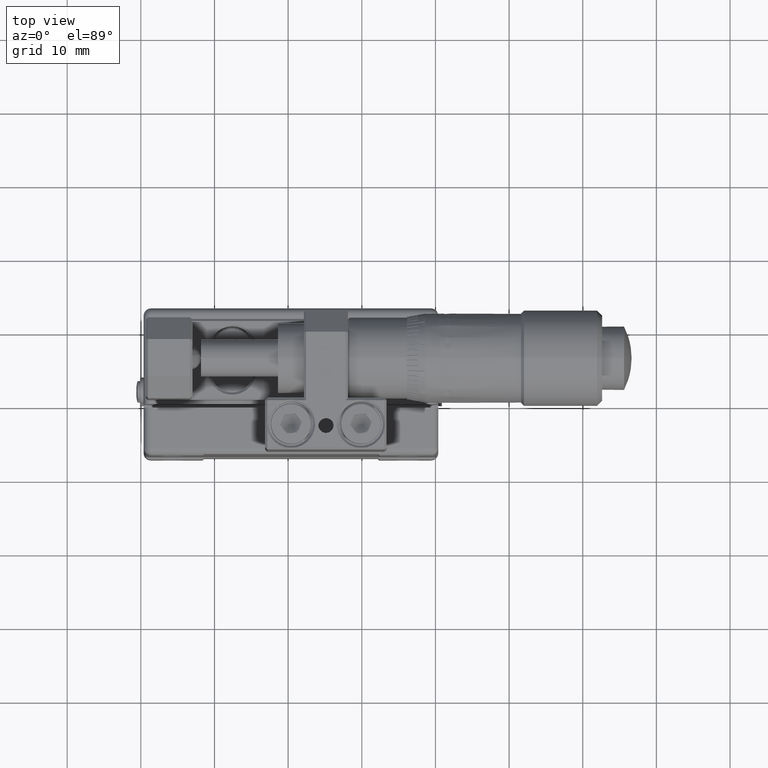
[diagram: clean part render]
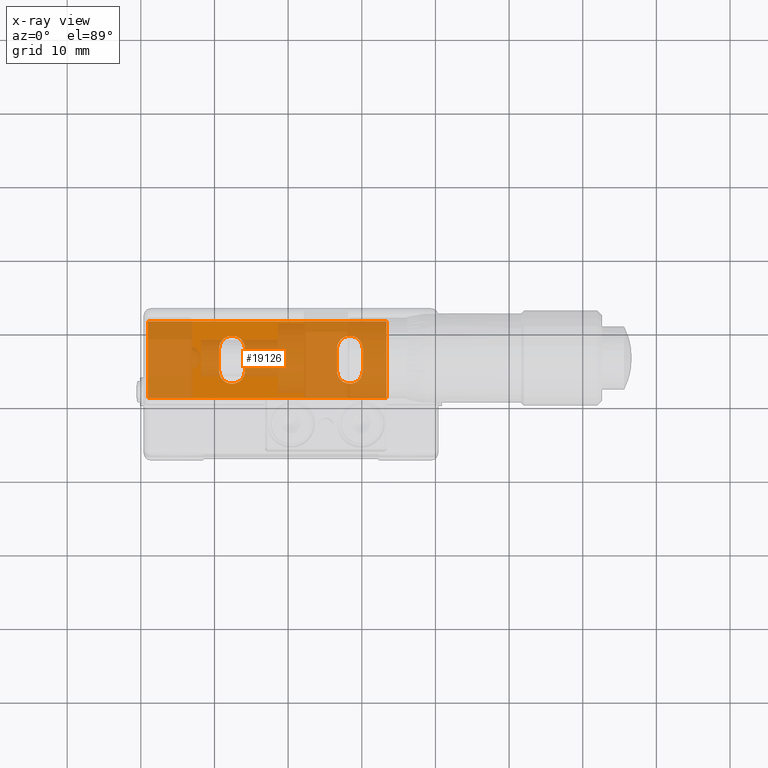
[diagram: x-ray — body ghosted, one internal face saturated and labeled with its STEP entity id]
A machine part, top view, then the same camera in x-ray: the body is ghosted and one INTERNAL B-rep face — a face not visible from any outside direction — is saturated and labeled: STEP entity #19126.
In plain terms, the highlighted planar face has unit normal (-0, -0, 1).
Its self-contained STEP definition (entity closure, byte-faithful):
#549 = ORIENTED_EDGE ( 'NONE', *, *, #38336, .T. ) ;
#826 = VERTEX_POINT ( 'NONE', #4807 ) ;
#842 = PLANE ( 'NONE',  #1156 ) ;
#1154 = EDGE_CURVE ( 'NONE', #826, #21026, #12389, .T. ) ;
#1156 = AXIS2_PLACEMENT_3D ( 'NONE', #36830, #40621, #54651 ) ;
#2594 = CIRCLE ( 'NONE', #9140, 1.749999999999999778 ) ;
#2661 = EDGE_CURVE ( 'NONE', #18019, #53919, #36563, .T. ) ;
#3791 = VECTOR ( 'NONE', #21853, 1000.000000000000000 ) ;
#4807 = CARTESIAN_POINT ( 'NONE',  ( 13.37967615857061965, 10.90826353992190079, 20.00000000000000000 ) ) ;
#5002 = CIRCLE ( 'NONE', #7862, 1.749999999999999778 ) ;
#5844 = FACE_BOUND ( 'NONE', #12778, .T. ) ;
#6294 = EDGE_LOOP ( 'NONE', ( #27012, #17747, #49864, #30144 ) ) ;
#6862 = EDGE_CURVE ( 'NONE', #46734, #826, #44048, .T. ) ;
#7005 = DIRECTION ( 'NONE',  ( 0.000000000000000000, -1.123714534568477868E-17, 1.000000000000000000 ) ) ;
#7862 = AXIS2_PLACEMENT_3D ( 'NONE', #43366, #35174, #34897 ) ;
#8284 = ORIENTED_EDGE ( 'NONE', *, *, #36318, .T. ) ;
#8515 = EDGE_CURVE ( 'NONE', #44990, #9290, #47734, .T. ) ;
#9140 = AXIS2_PLACEMENT_3D ( 'NONE', #55625, #43046, #20866 ) ;
#9290 = VERTEX_POINT ( 'NONE', #11860 ) ;
#11192 = DIRECTION ( 'NONE',  ( 2.775557561562869781E-17, 1.000000000000000000, 1.123714534568353838E-17 ) ) ;
#11285 = EDGE_CURVE ( 'NONE', #31073, #26706, #5002, .T. ) ;
#11860 = CARTESIAN_POINT ( 'NONE',  ( -9.370323841429350153, 7.208263539921899721, 20.00000000000000000 ) ) ;
#12389 = LINE ( 'NONE', #29616, #41914 ) ;
#12778 = EDGE_LOOP ( 'NONE', ( #8284, #53303, #54303, #549 ) ) ;
#14344 = FACE_BOUND ( 'NONE', #6294, .T. ) ;
#14515 = DIRECTION ( 'NONE',  ( 2.775557561562869781E-17, 1.000000000000000000, 1.123714534568353838E-17 ) ) ;
#14542 = CARTESIAN_POINT ( 'NONE',  ( 13.67967615857064168, 0.5082635399218790040, 20.00000000000000000 ) ) ;
#15768 = CARTESIAN_POINT ( 'NONE',  ( 8.379676158570680045, 7.208263539921889951, 20.00000000000000000 ) ) ;
#17055 = CARTESIAN_POINT ( 'NONE',  ( -5.870323841429350153, 7.208263539921899721, 20.00000000000000000 ) ) ;
#17455 = VECTOR ( 'NONE', #43254, 1000.000000000000000 ) ;
#17747 = ORIENTED_EDGE ( 'NONE', *, *, #8515, .T. ) ;
#18019 = VERTEX_POINT ( 'NONE', #37305 ) ;
#19010 = FACE_OUTER_BOUND ( 'NONE', #19727, .T. ) ;
#19126 = ADVANCED_FACE ( 'NONE', ( #5844, #14344, #19010 ), #842, .F. ) ;
#19727 = EDGE_LOOP ( 'NONE', ( #22022, #45042, #47813, #45583 ) ) ;
#20732 = AXIS2_PLACEMENT_3D ( 'NONE', #15768, #7005, #33586 ) ;
#20866 = DIRECTION ( 'NONE',  ( 1.000000000000000000, 0.000000000000000000, 0.000000000000000000 ) ) ;
#21026 = VERTEX_POINT ( 'NONE', #57177 ) ;
#21299 = VECTOR ( 'NONE', #14515, 1000.000000000000000 ) ;
#21853 = DIRECTION ( 'NONE',  ( 1.000000000000000000, -2.775557561562914770E-17, 3.434620910002040212E-16 ) ) ;
#22022 = ORIENTED_EDGE ( 'NONE', *, *, #1154, .T. ) ;
#23453 = CARTESIAN_POINT ( 'NONE',  ( -19.02032384142934873, 11.20826353992189972, 20.00000000000000000 ) ) ;
#25436 = CARTESIAN_POINT ( 'NONE',  ( -9.370323841429350153, 4.208263539921880181, 20.00000000000000000 ) ) ;
#25503 = CARTESIAN_POINT ( 'NONE',  ( 6.629676158570680045, 4.208263539921874852, 20.00000000000000000 ) ) ;
#25939 = CARTESIAN_POINT ( 'NONE',  ( -5.870323841429350153, 4.208263539921880181, 20.00000000000000000 ) ) ;
#25986 = DIRECTION ( 'NONE',  ( 1.000000000000000000, 0.000000000000000000, 0.000000000000000000 ) ) ;
#26345 = LINE ( 'NONE', #35109, #51610 ) ;
#26706 = VERTEX_POINT ( 'NONE', #25939 ) ;
#27012 = ORIENTED_EDGE ( 'NONE', *, *, #52405, .T. ) ;
#27437 = VECTOR ( 'NONE', #34544, 1000.000000000000000 ) ;
#28382 = EDGE_CURVE ( 'NONE', #49312, #46734, #55292, .T. ) ;
#29616 = CARTESIAN_POINT ( 'NONE',  ( 13.37967615857061965, 11.20826353992189972, 20.00000000000000000 ) ) ;
#29812 = VECTOR ( 'NONE', #11192, 1000.000000000000000 ) ;
#29975 = VECTOR ( 'NONE', #36444, 1000.000000000000000 ) ;
#30144 = ORIENTED_EDGE ( 'NONE', *, *, #11285, .T. ) ;
#30164 = DIRECTION ( 'NONE',  ( 2.775557561562869781E-17, 1.000000000000000000, 1.123714534568353838E-17 ) ) ;
#30202 = DIRECTION ( 'NONE',  ( -2.775557561562869781E-17, -1.000000000000000000, -1.123714534568353838E-17 ) ) ;
#30380 = CARTESIAN_POINT ( 'NONE',  ( -7.620323841429350153, 7.208263539921899721, 20.00000000000000000 ) ) ;
#30880 = LINE ( 'NONE', #50447, #21299 ) ;
#31073 = VERTEX_POINT ( 'NONE', #31781 ) ;
#31525 = LINE ( 'NONE', #25503, #27437 ) ;
#31781 = CARTESIAN_POINT ( 'NONE',  ( -9.370323841429350153, 4.208263539921880181, 20.00000000000000000 ) ) ;
#32858 = CARTESIAN_POINT ( 'NONE',  ( -19.02032384142934873, 0.5082635399218790040, 20.00000000000000000 ) ) ;
#33586 = DIRECTION ( 'NONE',  ( 1.000000000000000000, 0.000000000000000000, 0.000000000000000000 ) ) ;
#34544 = DIRECTION ( 'NONE',  ( -2.775557561562869781E-17, -1.000000000000000000, -1.123714534568353838E-17 ) ) ;
#34596 = CARTESIAN_POINT ( 'NONE',  ( -19.02032384142934873, 10.90826353992190079, 20.00000000000000000 ) ) ;
#34897 = DIRECTION ( 'NONE',  ( 1.000000000000000000, 0.000000000000000000, 0.000000000000000000 ) ) ;
#35109 = CARTESIAN_POINT ( 'NONE',  ( -5.870323841429350153, 4.208263539921880181, 20.00000000000000000 ) ) ;
#35174 = DIRECTION ( 'NONE',  ( 0.000000000000000000, -1.123714534568477868E-17, 1.000000000000000000 ) ) ;
#35277 = CARTESIAN_POINT ( 'NONE',  ( 13.67967615857064168, 10.90826353992190079, 20.00000000000000000 ) ) ;
#36318 = EDGE_CURVE ( 'NONE', #36388, #18019, #30880, .T. ) ;
#36388 = VERTEX_POINT ( 'NONE', #40512 ) ;
#36444 = DIRECTION ( 'NONE',  ( -1.000000000000000000, 2.775557561562914770E-17, -3.434620910002040212E-16 ) ) ;
#36563 = CIRCLE ( 'NONE', #20732, 1.749999999999999778 ) ;
#36830 = CARTESIAN_POINT ( 'NONE',  ( 13.67967615857064168, 11.20826353992189972, 20.00000000000000000 ) ) ;
#37004 = EDGE_CURVE ( 'NONE', #9290, #31073, #51761, .T. ) ;
#37305 = CARTESIAN_POINT ( 'NONE',  ( 10.12967615857068004, 7.208263539921889951, 20.00000000000000000 ) ) ;
#38336 = EDGE_CURVE ( 'NONE', #47807, #36388, #2594, .T. ) ;
#38855 = DIRECTION ( 'NONE',  ( 0.000000000000000000, -1.123714534568477868E-17, 1.000000000000000000 ) ) ;
#39571 = CARTESIAN_POINT ( 'NONE',  ( 6.629676158570680045, 4.208263539921874852, 20.00000000000000000 ) ) ;
#40219 = CARTESIAN_POINT ( 'NONE',  ( 6.629676158570680045, 7.208263539921889951, 20.00000000000000000 ) ) ;
#40512 = CARTESIAN_POINT ( 'NONE',  ( 10.12967615857068004, 4.208263539921874852, 20.00000000000000000 ) ) ;
#40621 = DIRECTION ( 'NONE',  ( -3.434620910002055003E-16, -1.123714534568351835E-17, 1.000000000000000000 ) ) ;
#41914 = VECTOR ( 'NONE', #30202, 1000.000000000000000 ) ;
#43046 = DIRECTION ( 'NONE',  ( 0.000000000000000000, -1.123714534568477868E-17, 1.000000000000000000 ) ) ;
#43254 = DIRECTION ( 'NONE',  ( -2.775557561562869781E-17, -1.000000000000000000, -1.123714534568353838E-17 ) ) ;
#43366 = CARTESIAN_POINT ( 'NONE',  ( -7.620323841429350153, 4.208263539921880181, 20.00000000000000000 ) ) ;
#44048 = LINE ( 'NONE', #35277, #3791 ) ;
#44990 = VERTEX_POINT ( 'NONE', #17055 ) ;
#45042 = ORIENTED_EDGE ( 'NONE', *, *, #49988, .T. ) ;
#45583 = ORIENTED_EDGE ( 'NONE', *, *, #6862, .T. ) ;
#46734 = VERTEX_POINT ( 'NONE', #34596 ) ;
#47734 = CIRCLE ( 'NONE', #52427, 1.749999999999999778 ) ;
#47807 = VERTEX_POINT ( 'NONE', #39571 ) ;
#47813 = ORIENTED_EDGE ( 'NONE', *, *, #28382, .T. ) ;
#49312 = VERTEX_POINT ( 'NONE', #32858 ) ;
#49864 = ORIENTED_EDGE ( 'NONE', *, *, #37004, .T. ) ;
#49988 = EDGE_CURVE ( 'NONE', #21026, #49312, #54841, .T. ) ;
#50447 = CARTESIAN_POINT ( 'NONE',  ( 10.12967615857068004, 4.208263539921874852, 20.00000000000000000 ) ) ;
#51610 = VECTOR ( 'NONE', #30164, 1000.000000000000000 ) ;
#51761 = LINE ( 'NONE', #25436, #17455 ) ;
#52405 = EDGE_CURVE ( 'NONE', #26706, #44990, #26345, .T. ) ;
#52427 = AXIS2_PLACEMENT_3D ( 'NONE', #30380, #38855, #25986 ) ;
#53303 = ORIENTED_EDGE ( 'NONE', *, *, #2661, .T. ) ;
#53604 = EDGE_CURVE ( 'NONE', #53919, #47807, #31525, .T. ) ;
#53919 = VERTEX_POINT ( 'NONE', #40219 ) ;
#54303 = ORIENTED_EDGE ( 'NONE', *, *, #53604, .T. ) ;
#54651 = DIRECTION ( 'NONE',  ( 1.000000000000000000, 0.000000000000000000, 3.434620910002055003E-16 ) ) ;
#54841 = LINE ( 'NONE', #14542, #29975 ) ;
#55292 = LINE ( 'NONE', #23453, #29812 ) ;
#55625 = CARTESIAN_POINT ( 'NONE',  ( 8.379676158570680045, 4.208263539921874852, 20.00000000000000000 ) ) ;
#57177 = CARTESIAN_POINT ( 'NONE',  ( 13.37967615857061965, 0.5082635399218780048, 20.00000000000000000 ) ) ;